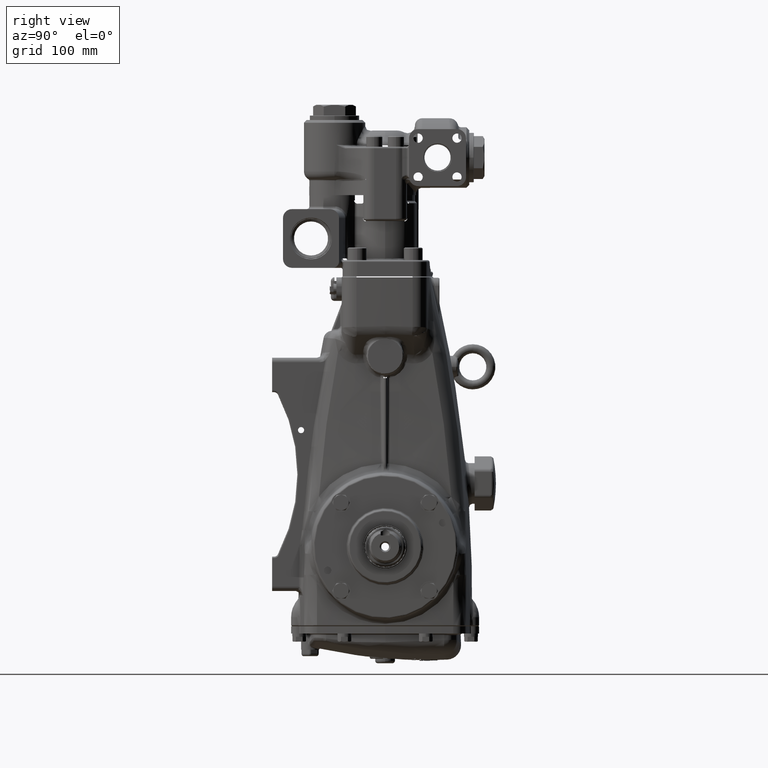
[diagram: clean part render]
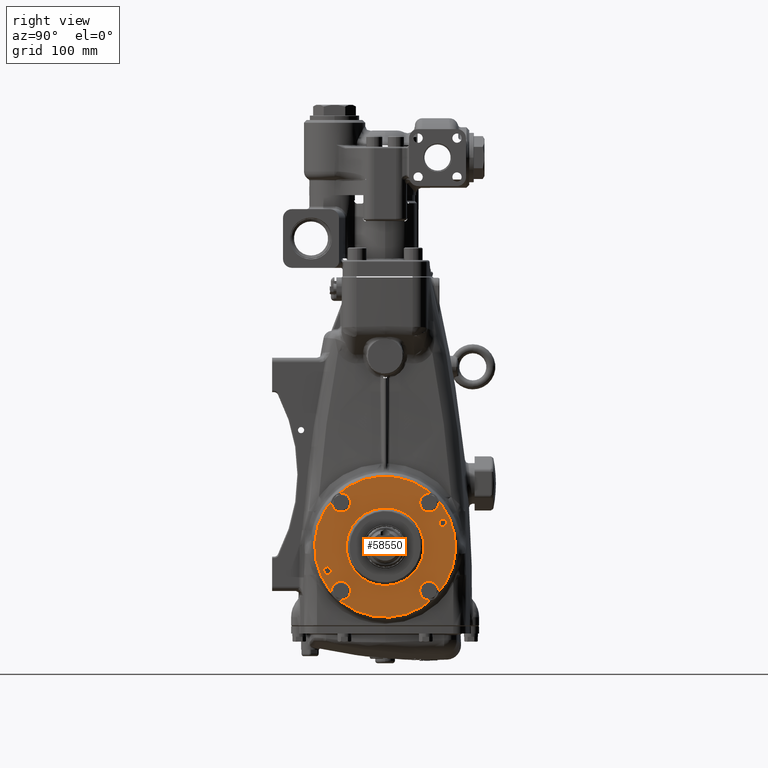
[diagram: same view with one face highlighted and labeled with its STEP entity id]
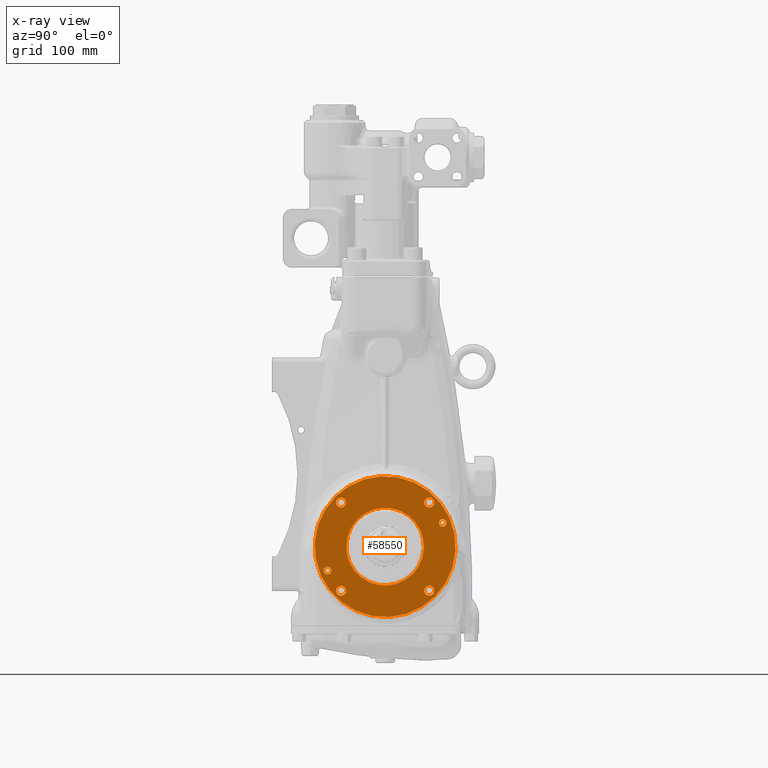
[diagram: x-ray of the same camera — body ghosted, the highlighted face saturated]
A machine part, right view. The second image highlights one B-rep face of the part: STEP entity #58550.
The next image is the same camera in x-ray: the body ghosted, the highlighted face saturated — about 0% of this face is hidden behind the body in this view.
In plain terms, the highlighted planar face has unit normal (1, 0, -0).
Its self-contained STEP definition (entity closure, byte-faithful):
#123 = CARTESIAN_POINT ( 'NONE',  ( 5.246062992125983371, -1.767766952966346672, 1.767766952966391303 ) ) ;
#153 = EDGE_CURVE ( 'NONE', #26409, #31595, #122554, .T. ) ;
#728 = PLANE ( 'NONE',  #96349 ) ;
#1638 = CARTESIAN_POINT ( 'NONE',  ( 5.246062992125982483, 2.509751485955868056, 1.039573103668921084 ) ) ;
#2891 = DIRECTION ( 'NONE',  ( 0.0000000000000000000, -0.7071067811865570096, -0.7071067811865379138 ) ) ;
#2991 = AXIS2_PLACEMENT_3D ( 'NONE', #39112, #79813, #120473 ) ;
#3239 = AXIS2_PLACEMENT_3D ( 'NONE', #7396, #48119, #88799 ) ;
#3257 = CIRCLE ( 'NONE', #77859, 1.692913385826772199 ) ;
#3632 = DIRECTION ( 'NONE',  ( 0.0000000000000000000, -0.7071067811865386910, 0.7071067811865563435 ) ) ;
#5753 = AXIS2_PLACEMENT_3D ( 'NONE', #45680, #86368, #127038 ) ;
#7396 = CARTESIAN_POINT ( 'NONE',  ( 5.246062992125983371, -2.509751485955868944, -1.039573103668919973 ) ) ;
#10152 = CARTESIAN_POINT ( 'NONE',  ( 5.246062992125983371, -1.767766952966395744, -2.073994299149497067 ) ) ;
#10731 = FACE_BOUND ( 'NONE', #62402, .T. ) ;
#11407 = AXIS2_PLACEMENT_3D ( 'NONE', #89102, #129785, #38420 ) ;
#13830 = VERTEX_POINT ( 'NONE', #114359 ) ;
#14584 = CIRCLE ( 'NONE', #89154, 1.692913385826772199 ) ;
#15584 = DIRECTION ( 'NONE',  ( 0.0000000000000000000, -0.7071067811865386910, 0.7071067811865563435 ) ) ;
#16311 = CARTESIAN_POINT ( 'NONE',  ( 5.246062992125982483, 2.073994299149494402, -2.073994299149545029 ) ) ;
#16356 = ORIENTED_EDGE ( 'NONE', *, *, #23888, .F. ) ;
#16687 = ORIENTED_EDGE ( 'NONE', *, *, #108771, .T. ) ;
#16810 = EDGE_LOOP ( 'NONE', ( #71780, #20214 ) ) ;
#17056 = ORIENTED_EDGE ( 'NONE', *, *, #28270, .F. ) ;
#18208 = CARTESIAN_POINT ( 'NONE',  ( 5.246062992125982483, 1.767766952966347560, -1.767766952966390637 ) ) ;
#18991 = AXIS2_PLACEMENT_3D ( 'NONE', #31855, #72549, #113213 ) ;
#19974 = AXIS2_PLACEMENT_3D ( 'NONE', #54354, #95041, #3632 ) ;
#20214 = ORIENTED_EDGE ( 'NONE', *, *, #119184, .F. ) ;
#20761 = FACE_BOUND ( 'NONE', #57568, .T. ) ;
#21219 = VERTEX_POINT ( 'NONE', #28847 ) ;
#22211 = DIRECTION ( 'NONE',  ( 1.000000000000000000, 1.132765510522192525E-16, -1.050649484868739380E-17 ) ) ;
#22890 = EDGE_LOOP ( 'NONE', ( #42345, #60463 ) ) ;
#23719 = CARTESIAN_POINT ( 'NONE',  ( 5.246062992125982483, 3.679258055829932045E-17, 2.924410489158433459E-16 ) ) ;
#23888 = EDGE_CURVE ( 'NONE', #13830, #95982, #77485, .T. ) ;
#25103 = EDGE_LOOP ( 'NONE', ( #95877, #25850 ) ) ;
#25850 = ORIENTED_EDGE ( 'NONE', *, *, #36952, .T. ) ;
#26409 = VERTEX_POINT ( 'NONE', #28392 ) ;
#27157 = DIRECTION ( 'NONE',  ( 0.0000000000000000000, -0.7071067811865563435, -0.7071067811865389130 ) ) ;
#28167 = DIRECTION ( 'NONE',  ( 1.000000000000000000, 1.132765510522192525E-16, -1.050649484868739380E-17 ) ) ;
#28270 = EDGE_CURVE ( 'NONE', #95982, #13830, #119270, .T. ) ;
#28392 = CARTESIAN_POINT ( 'NONE',  ( 5.246062992125982483, 1.767766952966394634, 2.073994299149498843 ) ) ;
#28847 = CARTESIAN_POINT ( 'NONE',  ( 5.246062992125982483, -2.171430272935040318, 2.171430272935094496 ) ) ;
#30531 = VERTEX_POINT ( 'NONE', #125993 ) ;
#30612 = CIRCLE ( 'NONE', #105132, 0.2165354330708661457 ) ;
#30875 = DIRECTION ( 'NONE',  ( 0.0000000000000000000, -0.7071067811865386910, 0.7071067811865563435 ) ) ;
#31145 = ORIENTED_EDGE ( 'NONE', *, *, #60443, .F. ) ;
#31595 = VERTEX_POINT ( 'NONE', #113180 ) ;
#31626 = DIRECTION ( 'NONE',  ( 0.0000000000000000000, -0.7071067811865386910, 0.7071067811865563435 ) ) ;
#31855 = CARTESIAN_POINT ( 'NONE',  ( 5.246062992125982483, 1.920880626057920981, -1.920880626057967833 ) ) ;
#32444 = EDGE_LOOP ( 'NONE', ( #75498, #93370 ) ) ;
#33396 = CARTESIAN_POINT ( 'NONE',  ( 5.246062992125982483, 1.197070535079573395, -1.197070535079603593 ) ) ;
#33431 = VERTEX_POINT ( 'NONE', #16311 ) ;
#36830 = ORIENTED_EDGE ( 'NONE', *, *, #91837, .F. ) ;
#36952 = EDGE_CURVE ( 'NONE', #79953, #21219, #60532, .T. ) ;
#38420 = DIRECTION ( 'NONE',  ( 0.0000000000000000000, -0.7071067811865386910, 0.7071067811865563435 ) ) ;
#39112 = CARTESIAN_POINT ( 'NONE',  ( 5.246062992125982483, 3.679258055829932045E-17, 2.924410489158433459E-16 ) ) ;
#39477 = DIRECTION ( 'NONE',  ( 0.0000000000000000000, -0.7071067811865386910, 0.7071067811865563435 ) ) ;
#41440 = CARTESIAN_POINT ( 'NONE',  ( 5.246062992125982483, 1.141392835773546777, -1.141392835773574976 ) ) ;
#41680 = EDGE_CURVE ( 'NONE', #131885, #92360, #60807, .T. ) ;
#42345 = ORIENTED_EDGE ( 'NONE', *, *, #130652, .F. ) ;
#42361 = DIRECTION ( 'NONE',  ( 1.000000000000000000, 2.037698983940620639E-16, -1.009998421905324609E-16 ) ) ;
#42649 = ORIENTED_EDGE ( 'NONE', *, *, #129350, .F. ) ;
#44235 = VERTEX_POINT ( 'NONE', #53834 ) ;
#44600 = CIRCLE ( 'NONE', #119143, 0.1648818897637790437 ) ;
#44738 = VERTEX_POINT ( 'NONE', #91188 ) ;
#45680 = CARTESIAN_POINT ( 'NONE',  ( 5.246062992125982483, 3.679258055829932045E-17, 2.924410489158433459E-16 ) ) ;
#47965 = AXIS2_PLACEMENT_3D ( 'NONE', #90168, #130864, #39477 ) ;
#48119 = DIRECTION ( 'NONE',  ( 1.000000000000000000, 2.037698983940620639E-16, -1.009998421905324609E-16 ) ) ;
#49529 = EDGE_LOOP ( 'NONE', ( #31145, #42649 ) ) ;
#49605 = CIRCLE ( 'NONE', #124157, 0.2165354330708661457 ) ;
#51441 = FACE_BOUND ( 'NONE', #22890, .T. ) ;
#51835 = CIRCLE ( 'NONE', #126347, 0.1648818897637792658 ) ;
#53617 = CARTESIAN_POINT ( 'NONE',  ( 5.246062992125983371, -2.509751485955868944, -1.039573103668919973 ) ) ;
#53834 = CARTESIAN_POINT ( 'NONE',  ( 5.246062992125982483, 2.626340588302690904, 1.156162206015740379 ) ) ;
#54354 = CARTESIAN_POINT ( 'NONE',  ( 5.246062992125983371, -1.920880626057920093, 1.920880626057968499 ) ) ;
#54879 = AXIS2_PLACEMENT_3D ( 'NONE', #77860, #118516, #27157 ) ;
#56354 = ORIENTED_EDGE ( 'NONE', *, *, #101771, .T. ) ;
#57567 = CARTESIAN_POINT ( 'NONE',  ( 5.246062992125983371, -2.393162383609046540, -0.9229840013221003447 ) ) ;
#57568 = EDGE_LOOP ( 'NONE', ( #36830, #81460 ) ) ;
#58089 = AXIS2_PLACEMENT_3D ( 'NONE', #66278, #106966, #15584 ) ;
#58550 = ADVANCED_FACE ( 'NONE', ( #71475, #112130, #20761, #61433, #102151, #10731, #51441, #92120 ), #728, .T. ) ;
#59294 = EDGE_CURVE ( 'NONE', #31595, #26409, #49605, .T. ) ;
#60443 = EDGE_CURVE ( 'NONE', #90019, #65032, #68914, .T. ) ;
#60463 = ORIENTED_EDGE ( 'NONE', *, *, #107194, .F. ) ;
#60532 = CIRCLE ( 'NONE', #2991, 3.070866141732283339 ) ;
#60807 = CIRCLE ( 'NONE', #3239, 0.1648818897637792658 ) ;
#61433 = FACE_BOUND ( 'NONE', #16810, .T. ) ;
#61804 = AXIS2_PLACEMENT_3D ( 'NONE', #119532, #28167, #68864 ) ;
#62402 = EDGE_LOOP ( 'NONE', ( #16356, #17056 ) ) ;
#62892 = DIRECTION ( 'NONE',  ( 0.0000000000000000000, -0.7071067811865386910, 0.7071067811865563435 ) ) ;
#63315 = CIRCLE ( 'NONE', #5753, 3.070866141732283339 ) ;
#63805 = CARTESIAN_POINT ( 'NONE',  ( 5.246062992125983371, -2.626340588302691792, -1.156162206015739491 ) ) ;
#64404 = DIRECTION ( 'NONE',  ( -1.000000000000000000, -1.132765510522192525E-16, 1.050649484868739380E-17 ) ) ;
#65032 = VERTEX_POINT ( 'NONE', #10152 ) ;
#66278 = CARTESIAN_POINT ( 'NONE',  ( 5.246062992125983371, -1.920880626057968943, -1.920880626057919871 ) ) ;
#66309 = EDGE_CURVE ( 'NONE', #21219, #79953, #63315, .T. ) ;
#66916 = VERTEX_POINT ( 'NONE', #33396 ) ;
#68864 = DIRECTION ( 'NONE',  ( 0.0000000000000000000, -0.7071067811865386910, 0.7071067811865563435 ) ) ;
#68914 = CIRCLE ( 'NONE', #11407, 0.2165354330708661457 ) ;
#71475 = FACE_OUTER_BOUND ( 'NONE', #25103, .T. ) ;
#71780 = ORIENTED_EDGE ( 'NONE', *, *, #107623, .F. ) ;
#72549 = DIRECTION ( 'NONE',  ( 1.000000000000000000, 1.132765510522192525E-16, -1.050649484868739380E-17 ) ) ;
#75498 = ORIENTED_EDGE ( 'NONE', *, *, #153, .F. ) ;
#76523 = CIRCLE ( 'NONE', #18991, 0.2165354330708661457 ) ;
#77485 = CIRCLE ( 'NONE', #19974, 0.2165354330708661457 ) ;
#77859 = AXIS2_PLACEMENT_3D ( 'NONE', #82316, #122987, #31626 ) ;
#77860 = CARTESIAN_POINT ( 'NONE',  ( 5.246062992125982483, 2.509751485955868056, 1.039573103668921084 ) ) ;
#79813 = DIRECTION ( 'NONE',  ( 1.000000000000000000, 1.132765510522192525E-16, -1.050649484868739380E-17 ) ) ;
#79953 = VERTEX_POINT ( 'NONE', #91793 ) ;
#81460 = ORIENTED_EDGE ( 'NONE', *, *, #41680, .F. ) ;
#81559 = CARTESIAN_POINT ( 'NONE',  ( 5.246062992125982483, 1.920880626057967833, 1.920880626057921425 ) ) ;
#82124 = DIRECTION ( 'NONE',  ( 1.000000000000000000, 1.132765510522191786E-16, -1.050649484868733834E-17 ) ) ;
#82316 = CARTESIAN_POINT ( 'NONE',  ( 5.246062992125982483, 3.679258055829932045E-17, 2.924410489158433459E-16 ) ) ;
#83052 = DIRECTION ( 'NONE',  ( 0.0000000000000000000, -0.7071067811865563435, -0.7071067811865389130 ) ) ;
#86368 = DIRECTION ( 'NONE',  ( 1.000000000000000000, 1.132765510522192525E-16, -1.050649484868739380E-17 ) ) ;
#88799 = DIRECTION ( 'NONE',  ( 0.0000000000000000000, -0.7071067811865570096, -0.7071067811865379138 ) ) ;
#89102 = CARTESIAN_POINT ( 'NONE',  ( 5.246062992125983371, -1.920880626057968943, -1.920880626057919871 ) ) ;
#89154 = AXIS2_PLACEMENT_3D ( 'NONE', #23719, #64404, #105099 ) ;
#90019 = VERTEX_POINT ( 'NONE', #103938 ) ;
#90168 = CARTESIAN_POINT ( 'NONE',  ( 5.246062992125982483, 1.920880626057967833, 1.920880626057921425 ) ) ;
#91188 = CARTESIAN_POINT ( 'NONE',  ( 5.246062992125982483, 2.393162383609045651, 0.9229840013221014550 ) ) ;
#91793 = CARTESIAN_POINT ( 'NONE',  ( 5.246062992125982483, 2.171430272935039429, -2.171430272935094496 ) ) ;
#91837 = EDGE_CURVE ( 'NONE', #92360, #131885, #51835, .T. ) ;
#92120 = FACE_BOUND ( 'NONE', #49529, .T. ) ;
#92360 = VERTEX_POINT ( 'NONE', #63805 ) ;
#93370 = ORIENTED_EDGE ( 'NONE', *, *, #59294, .F. ) ;
#94307 = DIRECTION ( 'NONE',  ( 1.000000000000000000, 2.037698983940620639E-16, -1.009998421905324609E-16 ) ) ;
#95041 = DIRECTION ( 'NONE',  ( 1.000000000000000000, 1.132765510522192525E-16, -1.050649484868739380E-17 ) ) ;
#95877 = ORIENTED_EDGE ( 'NONE', *, *, #66309, .T. ) ;
#95982 = VERTEX_POINT ( 'NONE', #123 ) ;
#96291 = EDGE_LOOP ( 'NONE', ( #16687, #56354 ) ) ;
#96349 = AXIS2_PLACEMENT_3D ( 'NONE', #41440, #82124, #122796 ) ;
#101771 = EDGE_CURVE ( 'NONE', #66916, #30531, #3257, .T. ) ;
#102151 = FACE_BOUND ( 'NONE', #32444, .T. ) ;
#103938 = CARTESIAN_POINT ( 'NONE',  ( 5.246062992125983371, -2.073994299149542364, -1.767766952966342675 ) ) ;
#105099 = DIRECTION ( 'NONE',  ( 0.0000000000000000000, -0.7071067811865386910, 0.7071067811865563435 ) ) ;
#105132 = AXIS2_PLACEMENT_3D ( 'NONE', #113577, #22211, #62892 ) ;
#106966 = DIRECTION ( 'NONE',  ( 1.000000000000000000, 1.132765510522192525E-16, -1.050649484868739380E-17 ) ) ;
#107194 = EDGE_CURVE ( 'NONE', #33431, #129468, #76523, .T. ) ;
#107623 = EDGE_CURVE ( 'NONE', #44738, #44235, #44600, .T. ) ;
#108771 = EDGE_CURVE ( 'NONE', #30531, #66916, #14584, .T. ) ;
#112130 = FACE_BOUND ( 'NONE', #96291, .T. ) ;
#112420 = CIRCLE ( 'NONE', #54879, 0.1648818897637790437 ) ;
#113180 = CARTESIAN_POINT ( 'NONE',  ( 5.246062992125982483, 2.073994299149541476, 1.767766952966344229 ) ) ;
#113213 = DIRECTION ( 'NONE',  ( 0.0000000000000000000, -0.7071067811865386910, 0.7071067811865563435 ) ) ;
#113577 = CARTESIAN_POINT ( 'NONE',  ( 5.246062992125982483, 1.920880626057920981, -1.920880626057967833 ) ) ;
#114359 = CARTESIAN_POINT ( 'NONE',  ( 5.246062992125983371, -2.073994299149493514, 2.073994299149545473 ) ) ;
#115595 = CIRCLE ( 'NONE', #58089, 0.2165354330708661457 ) ;
#118516 = DIRECTION ( 'NONE',  ( 1.000000000000000000, 2.037698983940620639E-16, -1.009998421905324609E-16 ) ) ;
#119143 = AXIS2_PLACEMENT_3D ( 'NONE', #1638, #42361, #83052 ) ;
#119184 = EDGE_CURVE ( 'NONE', #44235, #44738, #112420, .T. ) ;
#119270 = CIRCLE ( 'NONE', #61804, 0.2165354330708661457 ) ;
#119532 = CARTESIAN_POINT ( 'NONE',  ( 5.246062992125983371, -1.920880626057920093, 1.920880626057968499 ) ) ;
#120473 = DIRECTION ( 'NONE',  ( 0.0000000000000000000, -0.7071067811865388020, 0.7071067811865563435 ) ) ;
#122237 = DIRECTION ( 'NONE',  ( 1.000000000000000000, 1.132765510522192525E-16, -1.050649484868739380E-17 ) ) ;
#122554 = CIRCLE ( 'NONE', #47965, 0.2165354330708661457 ) ;
#122796 = DIRECTION ( 'NONE',  ( 8.752783115245576924E-17, -0.7071067811865386910, 0.7071067811865563435 ) ) ;
#122987 = DIRECTION ( 'NONE',  ( -1.000000000000000000, -1.132765510522192525E-16, 1.050649484868739380E-17 ) ) ;
#124157 = AXIS2_PLACEMENT_3D ( 'NONE', #81559, #122237, #30875 ) ;
#125993 = CARTESIAN_POINT ( 'NONE',  ( 5.246062992125982483, -1.197070535079573839, 1.197070535079603815 ) ) ;
#126347 = AXIS2_PLACEMENT_3D ( 'NONE', #53617, #94307, #2891 ) ;
#127038 = DIRECTION ( 'NONE',  ( 0.0000000000000000000, -0.7071067811865388020, 0.7071067811865563435 ) ) ;
#129350 = EDGE_CURVE ( 'NONE', #65032, #90019, #115595, .T. ) ;
#129468 = VERTEX_POINT ( 'NONE', #18208 ) ;
#129785 = DIRECTION ( 'NONE',  ( 1.000000000000000000, 1.132765510522192525E-16, -1.050649484868739380E-17 ) ) ;
#130652 = EDGE_CURVE ( 'NONE', #129468, #33431, #30612, .T. ) ;
#130864 = DIRECTION ( 'NONE',  ( 1.000000000000000000, 1.132765510522192525E-16, -1.050649484868739380E-17 ) ) ;
#131885 = VERTEX_POINT ( 'NONE', #57567 ) ;